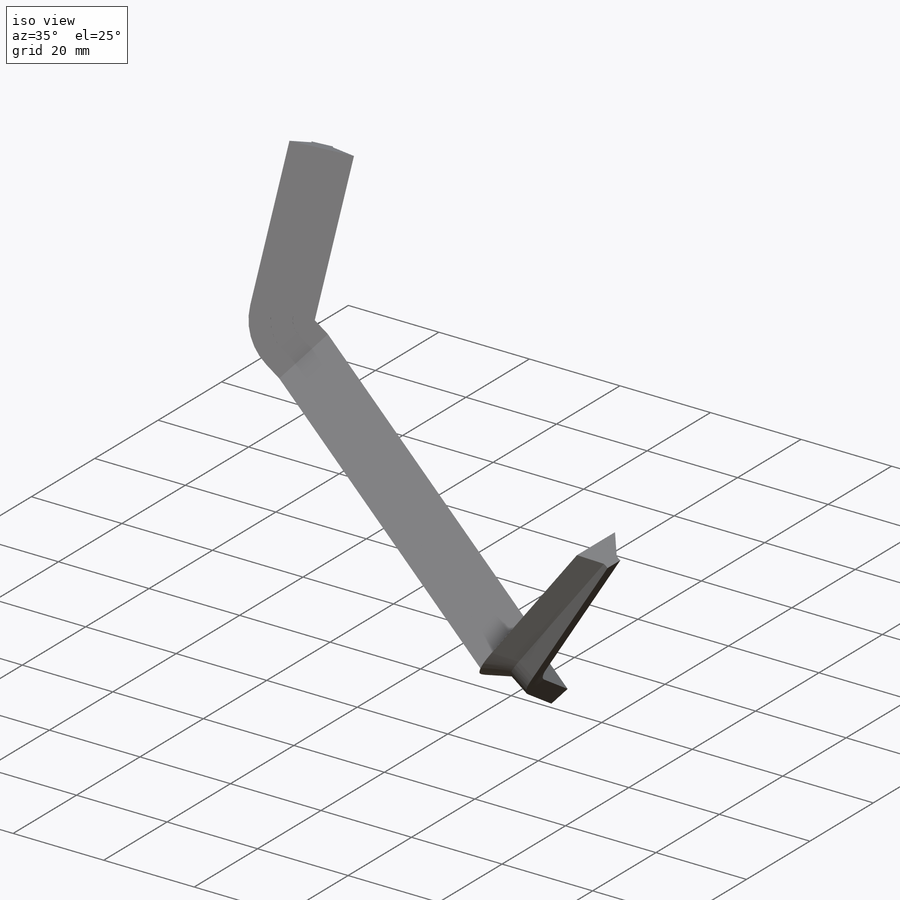
[diagram: iso view]
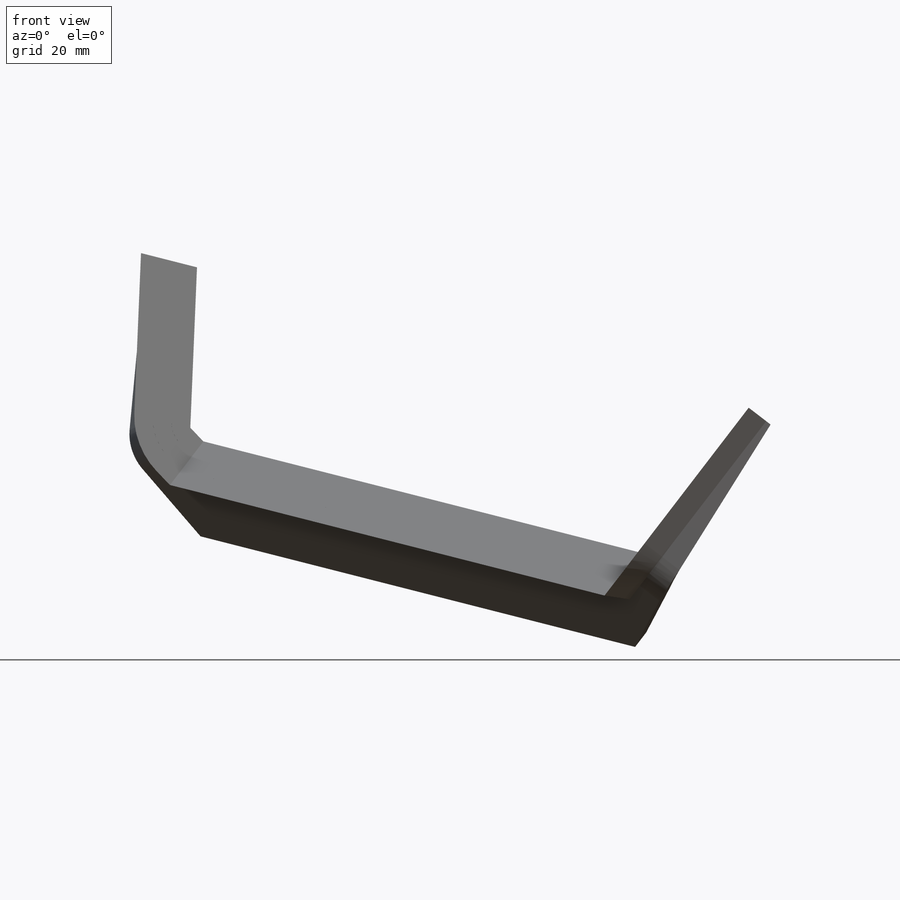
[diagram: front view]
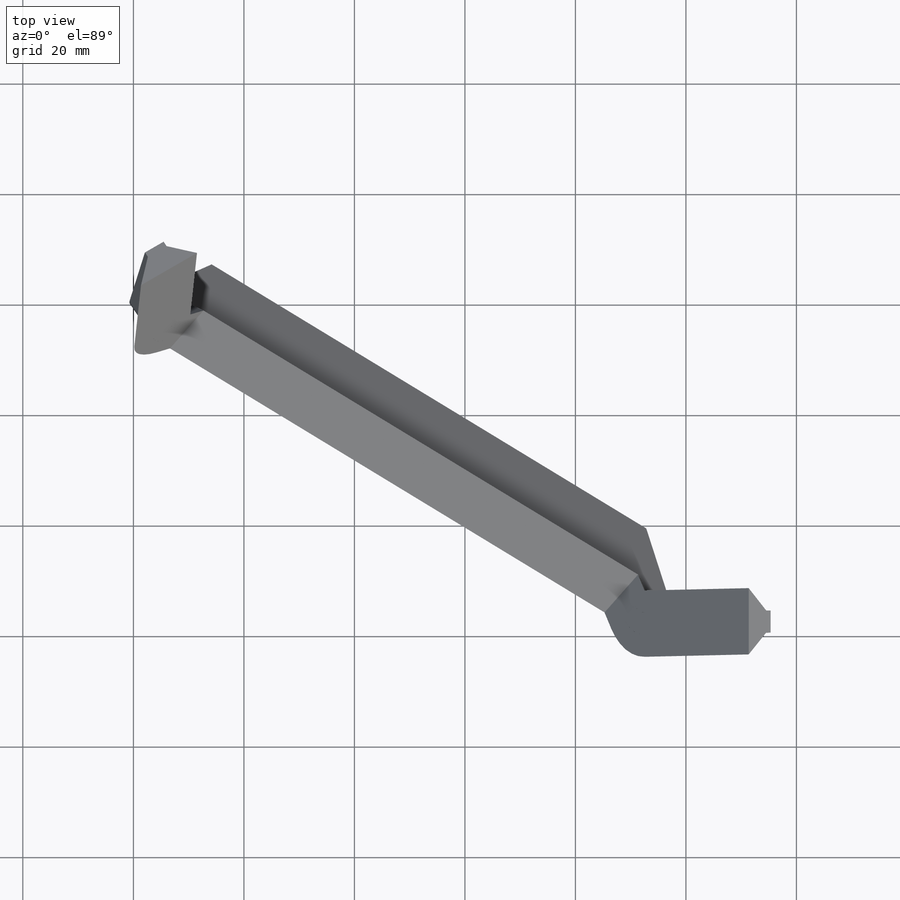
[diagram: top view]
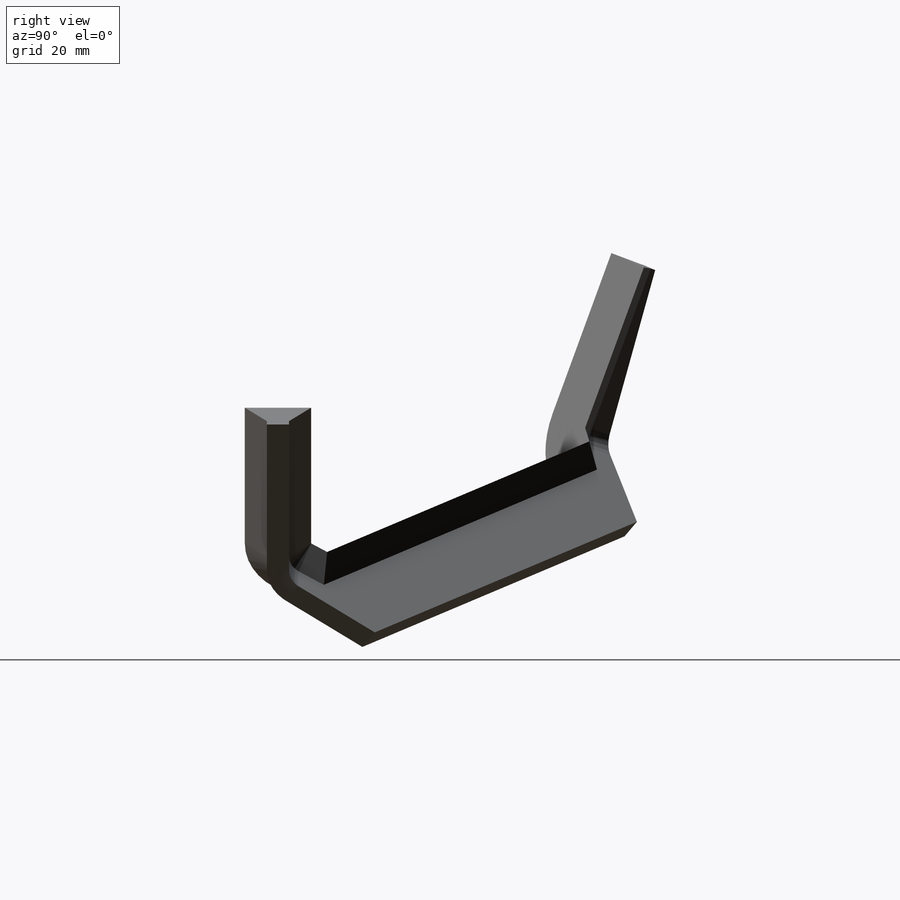
[diagram: right view]
SOLIDWORKS PART (.sldprt)
format: sldprt  version: not decoded by parser v0  size: 281,600 bytes
history: native  units: mm
features: sketch x6, sheet_metal_op x5, plane x4, material x1, fillet x1, mirror x1, sweep x1 + 7 further entries (+9 scaffold rows collapsed)
feature tree (35):
  scaffold x9  (default folders/planes/origin — collapsed)
  material  " 09Г2С ГОСТ 4543-71"
  plane  "Спереди"
  plane  "Сверху"
  plane  "Слева"
  "Начало координат"
  "PTricksFreeParameters"
  "PTricksEqu"
  "PTricksFreeParameters"
  sketch  "Эскиз1"  dims[c1.D1=~31.248684mm c2.D1=16.5mm c2.D2=5.0mm c2.D3=~58.318654mm c3.D3=~51.872209deg c4.D3=~916.297857mm c4.D4=47.0mm c4.D5=40.0mm]
  sheet_metal_op  "Листовой металл1"  Толщина=4mm
  sheet_metal_op  "Базовая кромка1"
  sketch  "Эскиз3"  dims[D1=3.5mm]
  "Преобразование эскиза2"
  plane  "Плоскость1"  Offset=0mm
  fillet  "Скругление1"  Radius=10mm
  mirror  "Зеркальное отражение1"
  "Зеркальное отражение сгиба2"
  sketch  "Трехмерный эскиз1"  dims[D1=~9.539762mm D2=14.0mm]
  sketch  "Эскиз4"  dims[D1=4.0mm]
  sweep  "По траектории2"
  sheet_metal_op  "сварка 1"
  sheet_metal_op  "сварка 2"
  "Развертка1"
  sketch  "Сгиб-Линии1"
  sheet_metal_op  "Преобразование эскиза1"
  sketch  "Плоское состояние-<Зеркальное отражение сгиба2>1"
decode coverage: 6 of 14 modeling features carry decoded parameters; 7 rows unclassified (native names shown)
note: ~ marks probable driven/reference dimensions
note: suppression state not decoded; provenance and decode notes live in map.json
